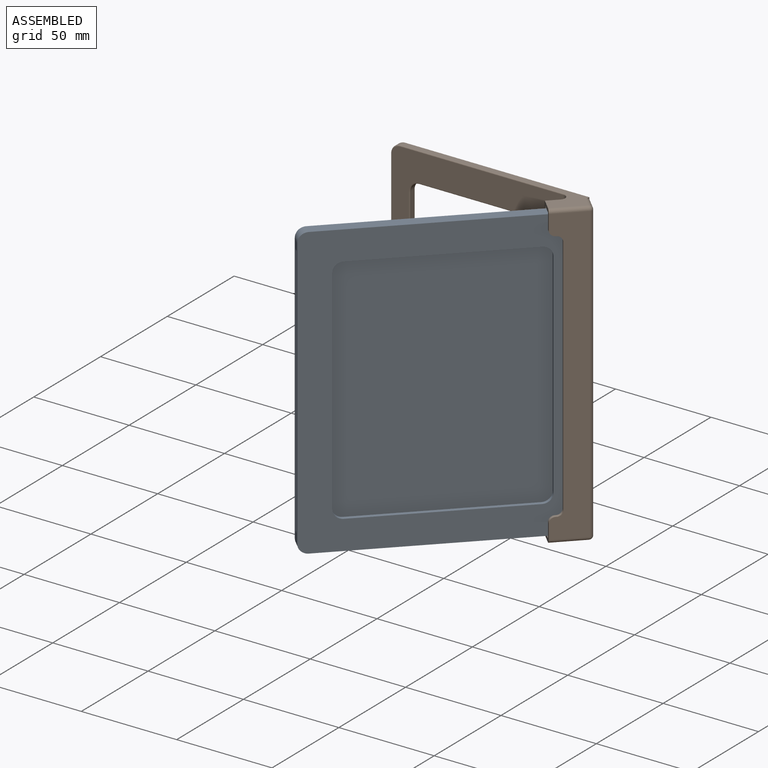
[diagram: assembled view]
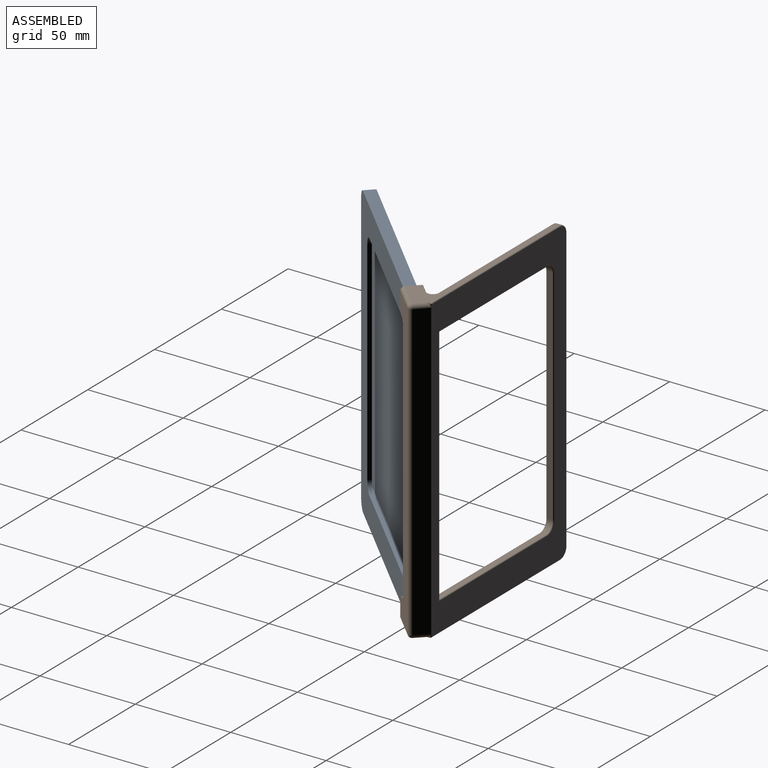
[diagram: assembled view, second angle]
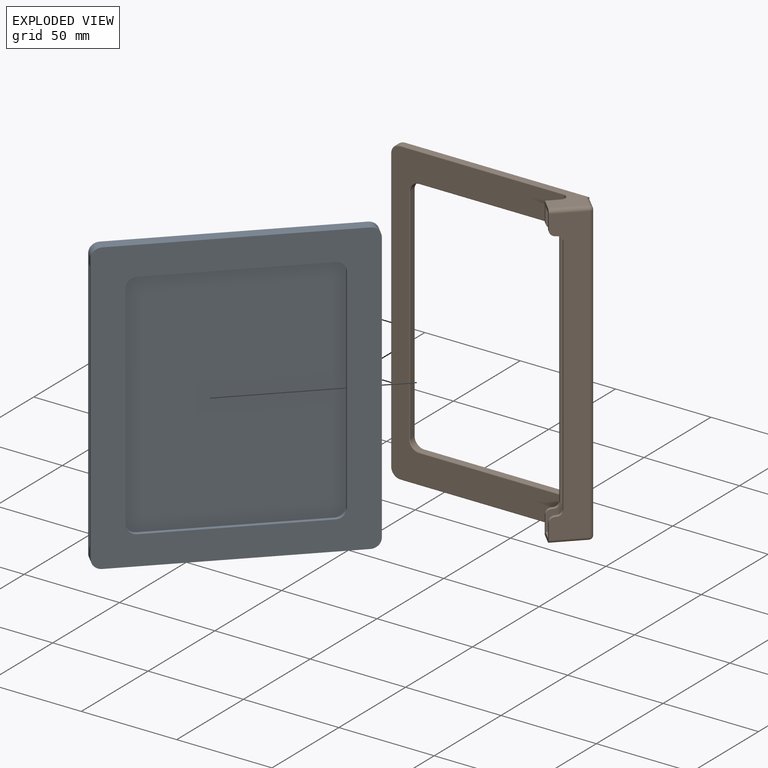
[diagram: exploded view]
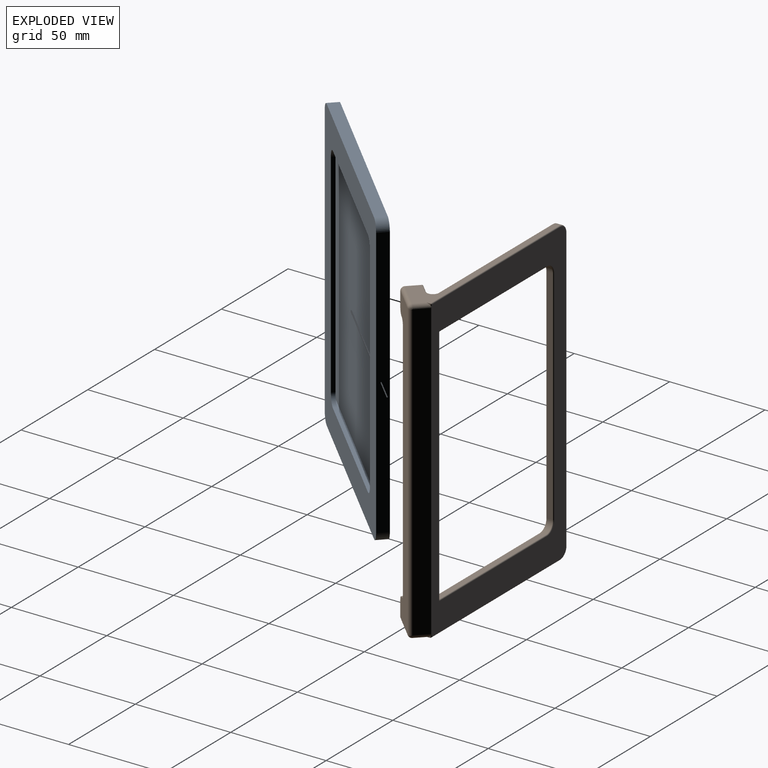
[diagram: exploded view, second angle]
ASSEMBLY  parts=2 mates=2
PART A: 25 faces, bbox 127x6x152.4 mm
  f0: plane 117x6mm, normal (0,0,-1), area 702mm2, adj f8,f9,f19,f22
  f1: plane 142.4x6mm, normal (1,0,0), area 854.4mm2, adj f8,f9,f19,f20
  f2: plane 117x6mm, normal (0,0,1), area 702mm2, adj f8,f9,f20,f21
  f3: plane 111.92x2mm, normal (-1,0,0), area 223.8mm2, adj f8,f13,f15,f18
  f4: plane 86.52x2mm, normal (0,0,1), area 173mm2, adj f8,f13,f15,f16
  f5: plane 111.92x2mm, normal (1,0,0), area 223.8mm2, adj f8,f13,f16,f17
  f6: plane 86.52x2mm, normal (0,0,-1), area 173mm2, adj f8,f13,f17,f18
  f7: plane 142.4x6mm, normal (-1,0,0), area 585.2mm2, adj f8,f9,f13,f14,f21,f22,f23,f24
  f8: plane 152.4x127mm, normal (0,-1,0), area 7587.1mm2, adj f0,f1,f2,f3,f4,f5,f6,f7
  f9: plane 152.4x127mm, normal (0,1,0), area 19333.3mm2, adj f0,f1,f2,f7,f19,f20,f21,f22
  f10: plane 128.6x2mm, normal (-1,0,0), area 257.2mm2, adj f11,f12,f13,f14
  f11: plane 114.76x2mm, normal (0,0,-1), area 229.5mm2, adj f10,f13,f14,f23
  f12: plane 114.76x2mm, normal (0,0,1), area 229.5mm2, adj f10,f13,f14,f24
  f13: plane 134.6x117.76mm, normal (0,1,0), area 3401.5mm2, adj f3,f4,f5,f6,f7,f10,f11,f12
  f14: plane 134.6x117.76mm, normal (0,-1,0), area 15147.8mm2, adj f7,f10,f11,f12,f23,f24
  f15: cylinder r=5mm len=5mm, axis (0,1,0), area 15.7mm2, adj f3,f4,f8,f13
  f16: cylinder r=5mm len=5mm, axis (0,-1,0), area 15.7mm2, adj f4,f5,f8,f13
  f17: cylinder r=5mm len=5mm, axis (0,1,0), area 15.7mm2, adj f5,f6,f8,f13
  f18: cylinder r=5mm len=5mm, axis (0,-1,0), area 15.7mm2, adj f3,f6,f8,f13
  f19: cylinder r=5mm len=6mm, axis (0,-1,0), area 47.1mm2, adj f0,f1,f8,f9
  f20: cylinder r=5mm len=6mm, axis (0,1,0), area 47.1mm2, adj f1,f2,f8,f9
  f21: cylinder r=5mm len=6mm, axis (0,-1,0), area 47.1mm2, adj f2,f7,f8,f9
  f22: cylinder r=5mm len=6mm, axis (0,1,0), area 47.1mm2, adj f0,f7,f8,f9
  f23: cylinder r=3mm len=3mm, axis (0,-1,0), area 9.4mm2, adj f7,f11,f13,f14
  f24: cylinder r=3mm len=3mm, axis (0,1,0), area 9.4mm2, adj f7,f12,f13,f14
PART B: 93 faces, bbox 160.1x22x109.1 mm
  f0: cylinder r=2mm len=7.04mm, axis (0,0.71,0.71), area 22.8mm2, adj f6,f11,f45,f51,f52,f76,f78
  f1: cylinder r=2mm len=7.04mm, axis (0,-0.71,-0.71), area 22.8mm2, adj f4,f11,f48,f49,f50,f82,f84
  f2: plane 9.7x7.07mm, normal (0,-0.71,0.71), area 46.8mm2, adj f4,f13,f14,f17,f18,f19,f30,f34
  f3: plane 79.08x3.05mm, normal (-1,0,0), area 232.8mm2, adj f39,f43,f72,f73,f89
  f4: plane 100.84x19.09mm, normal (1,0,0), area 434.9mm2, adj f1,f2,f40,f47,f49,f50,f57,f58
  f5: plane 148.4x3mm, normal (0,0,1), area 445.2mm2, adj f40,f41,f61,f79
  f6: plane 100.84x19.09mm, normal (-1,0,0), area 434.9mm2, adj f0,f12,f41,f44,f51,f52,f63,f64
  f7: plane 79.08x3.05mm, normal (1,0,0), area 232.8mm2, adj f38,f42,f67,f68,f88
  f8: plane 117x3mm, normal (0,0,-1), area 351mm2, adj f42,f43,f70,f85
  f9: plane 157.4x89.86mm, normal (0,-1,0), area 3791.1mm2, adj f36,f37,f59,f60,f61,f62,f63,f68
  f10: plane 157.4x100.89mm, normal (0,1,0), area 4837.4mm2, adj f75,f76,f77,f78,f79,f80,f81,f82
  f11: plane 154.4x5.51mm, normal (0,0.71,-0.71), area 1203.2mm2, adj f0,f1,f46,f80
  f12: plane 9.7x7.07mm, normal (0,-0.71,0.71), area 46.8mm2, adj f6,f13,f14,f16,f17,f18,f28,f32
  f13: plane 154.4x12.52mm, normal (0,-0.71,-0.71), area 1888.5mm2, adj f2,f12,f22,f23,f24,f28,f29,f30
  f14: plane 157.4x8.42mm, normal (0,0.71,0.71), area 823.8mm2, adj f2,f12,f25,f26,f27,f32,f33,f34
  f15: plane 144.4x4.53mm, normal (0,-0.71,0.71), area 924.2mm2, adj f17,f18,f20,f21
  f16: plane 13.51x13.51mm, normal (1,0,0), area 81.3mm2, adj f12,f17,f18,f20
  f17: plane 154.4x12.52mm, normal (0,-0.71,-0.71), area 1877.8mm2, adj f2,f12,f15,f16,f19,f20,f21,f25
  f18: plane 154.4x12.52mm, normal (0,0.71,0.71), area 1877.8mm2, adj f2,f12,f15,f16,f19,f20,f21,f22
  f19: plane 13.51x13.51mm, normal (-1,0,0), area 81.3mm2, adj f2,f17,f18,f21
  f20: cylinder r=5mm len=8.06mm, axis (0,0.71,0.71), area 50.3mm2, adj f15,f16,f17,f18
  f21: cylinder r=5mm len=8.06mm, axis (0,-0.71,-0.71), area 50.3mm2, adj f15,f17,f18,f19
  f22: plane 1.52x1.52mm, normal (-1,0,0), area 0.6mm2, adj f13,f18,f30,f31
  f23: plane 127x1.27mm, normal (0,-0.71,0.71), area 228.6mm2, adj f13,f18,f29,f31
  f24: plane 1.52x1.52mm, normal (1,0,0), area 0.6mm2, adj f13,f18,f28,f29
  f25: plane 1.52x1.52mm, normal (1,0,0), area 0.6mm2, adj f14,f17,f32,f33
  f26: plane 127x1.27mm, normal (0,-0.71,0.71), area 228.6mm2, adj f14,f17,f33,f35
  f27: plane 1.52x1.52mm, normal (-1,0,0), area 0.6mm2, adj f14,f17,f34,f35
  f28: cylinder r=3mm len=3.39mm, axis (0,0.71,0.71), area 8.5mm2, adj f12,f13,f18,f24
  f29: cylinder r=3mm len=3.39mm, axis (0,0.71,0.71), area 8.5mm2, adj f13,f18,f23,f24
  f30: cylinder r=3mm len=3.39mm, axis (0,-0.71,-0.71), area 8.5mm2, adj f2,f13,f18,f22
  f31: cylinder r=3mm len=3.39mm, axis (0,-0.71,-0.71), area 8.5mm2, adj f13,f18,f22,f23
  f32: cylinder r=3mm len=3.39mm, axis (0,0.71,0.71), area 8.5mm2, adj f12,f14,f17,f25
  f33: cylinder r=3mm len=3.39mm, axis (0,0.71,0.71), area 8.5mm2, adj f14,f17,f25,f26
  f34: cylinder r=3mm len=3.39mm, axis (0,-0.71,-0.71), area 8.5mm2, adj f2,f14,f17,f27
  f35: cylinder r=3mm len=3.39mm, axis (0,-0.71,-0.71), area 8.5mm2, adj f14,f17,f26,f27
  f36: cylinder r=3mm len=20.2mm, axis (1,0,0), area 116mm2, adj f9,f14,f58,f73,f74
  f37: cylinder r=3mm len=20.2mm, axis (1,0,0), area 116mm2, adj f9,f14,f64,f66,f67
  f38: cylinder r=5mm len=9.26mm, axis (0,0.71,-0.71), area 27.2mm2, adj f7,f14,f53,f54,f66,f90,f92
  f39: cylinder r=5mm len=9.26mm, axis (0,0.71,-0.71), area 27.2mm2, adj f3,f14,f53,f56,f74,f91,f92
  f40: cylinder r=5mm len=5mm, axis (0,1,0), area 23.6mm2, adj f4,f5,f60,f81
  f41: cylinder r=5mm len=5mm, axis (0,-1,0), area 23.6mm2, adj f5,f6,f62,f77
  f42: cylinder r=5mm len=5mm, axis (0,1,0), area 23.6mm2, adj f7,f8,f69,f86
  f43: cylinder r=5mm len=5mm, axis (0,-1,0), area 23.6mm2, adj f3,f8,f71,f87
  f44: cylinder r=2mm len=13.93mm, axis (0,0.71,-0.71), area 55.6mm2, adj f6,f12,f13,f45
  f45: sphere r=2mm, area 8.5mm2, adj f0,f44,f46
  f46: cylinder r=2mm len=154.4mm, axis (-1,0,0), area 485.1mm2, adj f11,f13,f45,f48
  f47: cylinder r=2mm len=13.93mm, axis (0,-0.71,0.71), area 55.6mm2, adj f2,f4,f13,f48
  f48: sphere r=2mm, area 6.5mm2, adj f1,f46,f47
  f49: plane 0.15x0mm, normal (0,-1,0), area 0mm2, adj f1,f4,f50
  f50: plane 2.18x0.86mm, normal (0,0,-1), area 0.6mm2, adj f1,f4,f49,f84
  f51: plane 0.15x0mm, normal (0,-1,0), area 0mm2, adj f0,f6,f52
  f52: plane 2.18x0.86mm, normal (0,0,-1), area 0.6mm2, adj f0,f6,f51,f76
  f53: plane 127.73x5.72mm, normal (0,0,1), area 382mm2, adj f38,f39,f54,f55,f56,f92
  f54: bspline ~2.83x2.72mm, area 2.8mm2, adj f38,f53,f55
  f55: plane 117x2.03mm, normal (0,-0.38,0.92), area 257.3mm2, adj f14,f53,f54,f56
  f56: bspline ~2.83x2.72mm, area 2.8mm2, adj f39,f53,f55
  f57: cylinder r=0.5mm len=5.16mm, axis (0,0.71,-0.71), area 5.3mm2, adj f2,f4,f14,f58
  f58: torus R=3.5mm, axis (1,0,0), area 5.9mm2, adj f4,f36,f57,f59
  f59: cylinder r=0.5mm len=85.36mm, axis (0,0,-1), area 67mm2, adj f4,f9,f58,f60
  f60: torus R=4.5mm, axis (0,-1,0), area 5.9mm2, adj f9,f40,f59,f61
  f61: cylinder r=0.5mm len=148.4mm, axis (1,0,0), area 116.6mm2, adj f5,f9,f60,f62
  f62: torus R=4.5mm, axis (0,-1,0), area 5.9mm2, adj f9,f41,f61,f63
  f63: cylinder r=0.5mm len=85.36mm, axis (0,0,1), area 67mm2, adj f6,f9,f62,f64
  f64: torus R=3.5mm, axis (1,0,0), area 5.9mm2, adj f6,f37,f63,f65
  f65: cylinder r=0.5mm len=5.16mm, axis (0,-0.71,0.71), area 5.3mm2, adj f6,f12,f14,f64
  f66: bspline ~5.6x5.5mm, area 2.8mm2, adj f37,f38,f67
  f67: torus R=3.5mm, axis (1,0,0), area 0.4mm2, adj f7,f37,f66,f68
  f68: cylinder r=0.5mm len=75.41mm, axis (0,0,-1), area 59.2mm2, adj f7,f9,f67,f69
  f69: torus R=5.5mm, axis (0,-1,0), area 6.4mm2, adj f9,f42,f68,f70
  f70: cylinder r=0.5mm len=117mm, axis (-1,0,0), area 91.9mm2, adj f8,f9,f69,f71
  f71: torus R=5.5mm, axis (0,-1,0), area 6.4mm2, adj f9,f43,f70,f72
  f72: cylinder r=0.5mm len=75.41mm, axis (0,0,1), area 59.2mm2, adj f3,f9,f71,f73
  f73: torus R=3.5mm, axis (1,0,0), area 0.4mm2, adj f3,f36,f72,f74
  f74: bspline ~5.6x5.5mm, area 2.8mm2, adj f36,f39,f73
  f75: cylinder r=0.5mm len=96.6mm, axis (0,0,-1), area 75.7mm2, adj f6,f10,f76,f77
  f76: cylinder r=0.5mm len=1.24mm, axis (1,0,0), area 0.7mm2, adj f0,f10,f52,f75,f78
  f77: torus R=4.5mm, axis (0,-1,0), area 5.9mm2, adj f10,f41,f75,f79
  f78: bspline ~1.37x0.85mm, area 0.4mm2, adj f0,f10,f76,f80
  f79: cylinder r=0.5mm len=148.4mm, axis (-1,0,0), area 116.6mm2, adj f5,f10,f77,f81
  f80: cylinder r=0.5mm len=154.4mm, axis (1,0,0), area 60.6mm2, adj f10,f11,f78,f82
  f81: torus R=4.5mm, axis (0,-1,0), area 5.9mm2, adj f10,f40,f79,f83
  f82: bspline ~1.29x0.85mm, area 0.4mm2, adj f1,f10,f80,f84
  f83: cylinder r=0.5mm len=96.6mm, axis (0,0,1), area 75.7mm2, adj f4,f10,f81,f84
  f84: cylinder r=0.5mm len=1.24mm, axis (1,0,0), area 0.7mm2, adj f1,f10,f50,f82,f83
  f85: cylinder r=0.5mm len=117mm, axis (1,0,0), area 91.9mm2, adj f8,f10,f86,f87
  f86: torus R=5.5mm, axis (0,-1,0), area 6.4mm2, adj f10,f42,f85,f88
  f87: torus R=5.5mm, axis (0,-1,0), area 6.4mm2, adj f10,f43,f85,f89
  f88: cylinder r=0.5mm len=79.08mm, axis (0,0,1), area 62.1mm2, adj f7,f10,f86,f90
  f89: cylinder r=0.5mm len=79.08mm, axis (0,0,-1), area 62.1mm2, adj f3,f10,f87,f91
  f90: bspline ~3.69x0.73mm, area 1.1mm2, adj f10,f38,f88,f92
  f91: bspline ~3.69x0.73mm, area 1.1mm2, adj f10,f39,f89,f92
  f92: cylinder r=0.5mm len=127.73mm, axis (-1,0,0), area 99.9mm2, adj f10,f38,f39,f53,f90,f91
PLACE A rot(axis=(0,0,1),45deg) t=(84.23,-29.4,50.56)mm
PLACE B rot(axis=(0,-1,0),90deg) t=(77.06,19.61,50.56)mm
MATE planar A.f1 <-> B.f15  axis (0.71,0.71,0) through (129.84,14.8,50.56)mm
MATE planar A.f9 <-> B.f17  axis (-0.71,0.71,0) through (82.82,-27.98,50.56)mm
